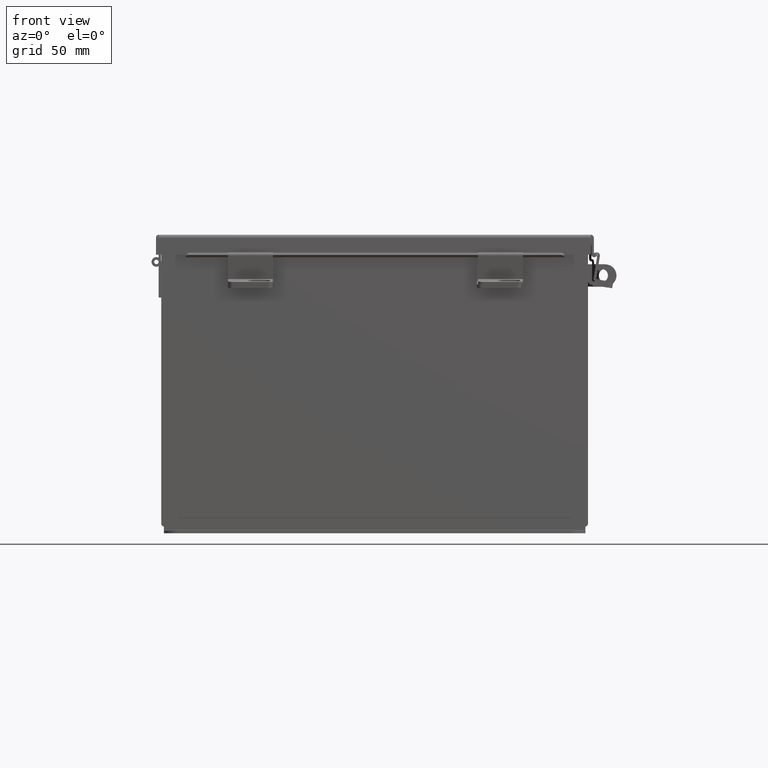
[diagram: clean part render]
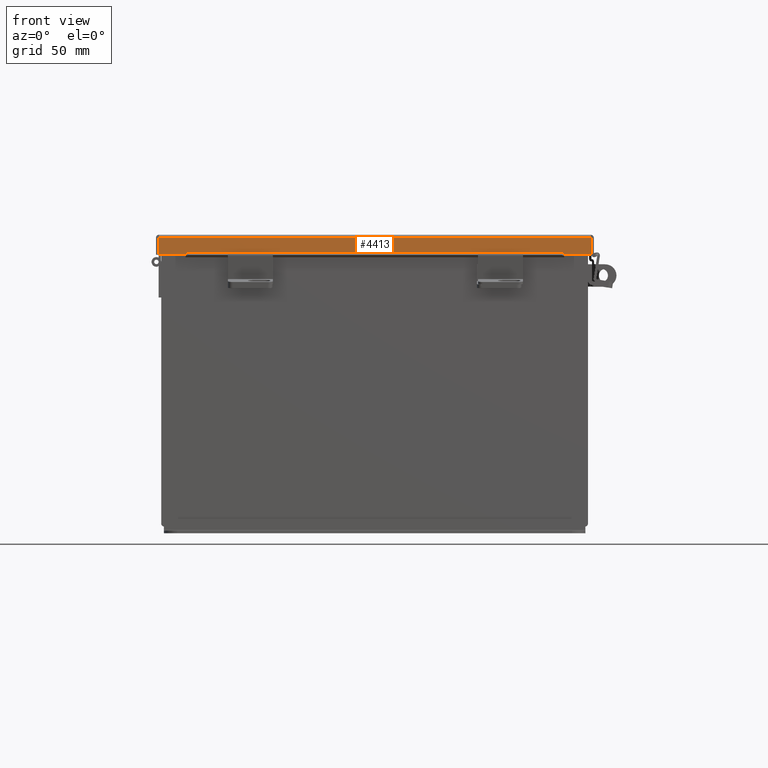
[diagram: same view with one face highlighted and labeled with its STEP entity id]
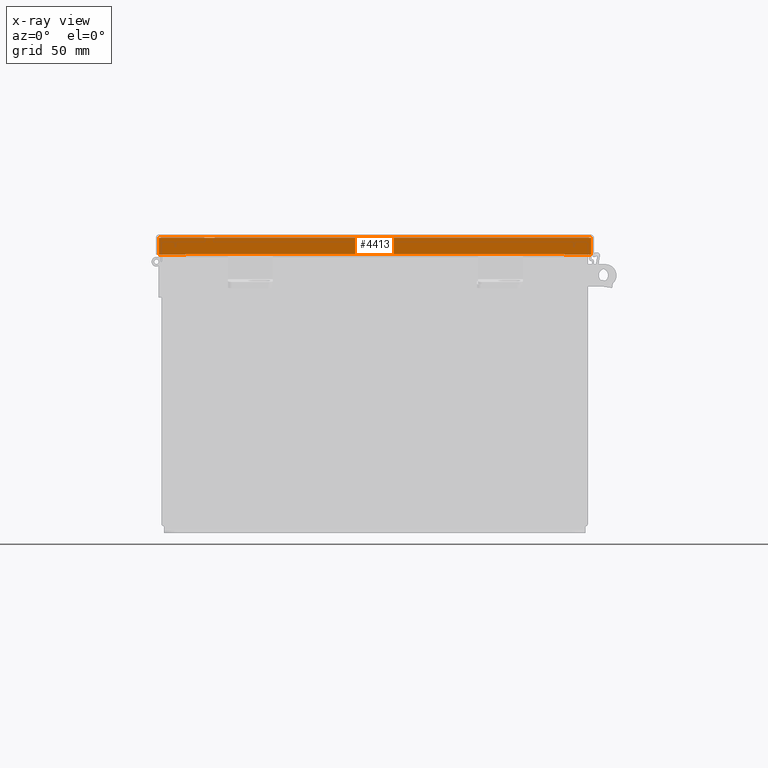
[diagram: x-ray of the same camera — body ghosted, the highlighted face saturated]
A machine part, front view. The second image highlights one B-rep face of the part: STEP entity #4413.
The next image is the same camera in x-ray: the body ghosted, the highlighted face saturated — about 0% of this face is hidden behind the body in this view.
In plain terms, the highlighted planar face has unit normal (0, 1, -0).
Its self-contained STEP definition (entity closure, byte-faithful):
#132 = CARTESIAN_POINT ( 'NONE',  ( -6.156249999999998200, -6.156250000000000000, 0.01299999999999978100 ) ) ;
#170 = LINE ( 'NONE', #132, #17610 ) ;
#367 = VERTEX_POINT ( 'NONE', #525 ) ;
#525 = CARTESIAN_POINT ( 'NONE',  ( 5.324478932188133000, -6.156250000000002700, 0.4717115427318791000 ) ) ;
#1169 = VERTEX_POINT ( 'NONE', #15259 ) ;
#2049 = EDGE_CURVE ( 'NONE', #367, #8483, #12065, .T. ) ;
#2500 = VECTOR ( 'NONE', #11872, 39.37007874015748100 ) ;
#2605 = VERTEX_POINT ( 'NONE', #9990 ) ;
#2609 = LINE ( 'NONE', #15858, #16367 ) ;
#2761 = PLANE ( 'NONE',  #13029 ) ;
#2762 = ORIENTED_EDGE ( 'NONE', *, *, #9770, .T. ) ;
#3127 = LINE ( 'NONE', #3197, #17752 ) ;
#3197 = CARTESIAN_POINT ( 'NONE',  ( -5.324478932188135600, -6.156250000000003600, 0.4717115427318791000 ) ) ;
#3257 = CARTESIAN_POINT ( 'NONE',  ( 2.703004116370754100E-018, -6.156250000000002700, 0.4872999999999997900 ) ) ;
#3321 = EDGE_LOOP ( 'NONE', ( #6032, #2762, #11891, #16739, #8761, #12601, #6228, #5368 ) ) ;
#3457 = EDGE_CURVE ( 'NONE', #4197, #13105, #4594, .T. ) ;
#3513 = CARTESIAN_POINT ( 'NONE',  ( -5.324478932188134700, -6.156250000000002700, 0.4717115427318791000 ) ) ;
#3927 = DIRECTION ( 'NONE',  ( 0.0000000000000000000, 7.009925220121084600E-014, -1.000000000000000000 ) ) ;
#4022 = VERTEX_POINT ( 'NONE', #6046 ) ;
#4153 = VECTOR ( 'NONE', #3927, 39.37007874015748100 ) ;
#4197 = VERTEX_POINT ( 'NONE', #15978 ) ;
#4371 = CARTESIAN_POINT ( 'NONE',  ( -5.324478932188134700, -6.156250000000004400, 0.4872999999999985700 ) ) ;
#4413 = ADVANCED_FACE ( 'NONE', ( #16336 ), #2761, .F. ) ;
#4594 = LINE ( 'NONE', #4371, #4153 ) ;
#4617 = DIRECTION ( 'NONE',  ( 1.000000000000000000, 0.0000000000000000000, 0.0000000000000000000 ) ) ;
#5368 = ORIENTED_EDGE ( 'NONE', *, *, #15896, .F. ) ;
#5553 = DIRECTION ( 'NONE',  ( 0.0000000000000000000, -4.484872552701437000E-015, 1.000000000000000000 ) ) ;
#6032 = ORIENTED_EDGE ( 'NONE', *, *, #3457, .F. ) ;
#6046 = CARTESIAN_POINT ( 'NONE',  ( 6.074478932188137400, -6.156250000000000000, 0.01299999999999978100 ) ) ;
#6228 = ORIENTED_EDGE ( 'NONE', *, *, #2049, .F. ) ;
#6231 = CARTESIAN_POINT ( 'NONE',  ( 5.324478932188133000, -6.156250000000003600, 0.4717115427318791000 ) ) ;
#6331 = VECTOR ( 'NONE', #13267, 39.37007874015748100 ) ;
#6408 = CARTESIAN_POINT ( 'NONE',  ( -6.074478932188137400, -6.156250000000000000, -3.350199796867980800E-016 ) ) ;
#6702 = VECTOR ( 'NONE', #12766, 39.37007874015748100 ) ;
#7116 = CARTESIAN_POINT ( 'NONE',  ( 5.324478932188132100, -6.156250000000002700, 0.4872999999999997900 ) ) ;
#8407 = DIRECTION ( 'NONE',  ( -1.000000000000000000, 2.487713722829918300E-032, 1.089533968265403200E-046 ) ) ;
#8442 = VECTOR ( 'NONE', #15795, 39.37007874015748100 ) ;
#8483 = VERTEX_POINT ( 'NONE', #7116 ) ;
#8761 = ORIENTED_EDGE ( 'NONE', *, *, #17486, .T. ) ;
#8770 = EDGE_CURVE ( 'NONE', #1169, #8483, #2609, .T. ) ;
#9770 = EDGE_CURVE ( 'NONE', #4197, #11869, #13962, .T. ) ;
#9990 = CARTESIAN_POINT ( 'NONE',  ( -6.074478932188137400, -6.156250000000000000, 0.01299999999999977400 ) ) ;
#10227 = EDGE_CURVE ( 'NONE', #4022, #2605, #170, .T. ) ;
#10359 = LINE ( 'NONE', #13333, #6331 ) ;
#11685 = DIRECTION ( 'NONE',  ( -1.000000000000000000, 0.0000000000000000000, 5.546899479521349200E-018 ) ) ;
#11869 = VERTEX_POINT ( 'NONE', #14700 ) ;
#11872 = DIRECTION ( 'NONE',  ( -0.0000000000000000000, -4.484872552701437000E-015, 1.000000000000000000 ) ) ;
#11891 = ORIENTED_EDGE ( 'NONE', *, *, #15181, .F. ) ;
#12065 = LINE ( 'NONE', #6231, #8442 ) ;
#12335 = CARTESIAN_POINT ( 'NONE',  ( -1.531498760617168500E-031, -6.156250000000000000, -2.787081030857980400E-014 ) ) ;
#12601 = ORIENTED_EDGE ( 'NONE', *, *, #8770, .T. ) ;
#12766 = DIRECTION ( 'NONE',  ( -1.000000000000000000, 0.0000000000000000000, 5.546899479521349200E-018 ) ) ;
#13023 = LINE ( 'NONE', #6408, #2500 ) ;
#13029 = AXIS2_PLACEMENT_3D ( 'NONE', #12335, #13742, #5553 ) ;
#13105 = VERTEX_POINT ( 'NONE', #3513 ) ;
#13267 = DIRECTION ( 'NONE',  ( 0.0000000000000000000, -4.484872552701437000E-015, 1.000000000000000000 ) ) ;
#13333 = CARTESIAN_POINT ( 'NONE',  ( 6.074478932188137400, -6.156250000000000000, -2.787081030857980400E-014 ) ) ;
#13742 = DIRECTION ( 'NONE',  ( 2.487713722829918300E-032, 1.000000000000000000, 4.484872552701437000E-015 ) ) ;
#13962 = LINE ( 'NONE', #3257, #6702 ) ;
#14700 = CARTESIAN_POINT ( 'NONE',  ( -6.074478932188137400, -6.156250000000002700, 0.4872999999999997900 ) ) ;
#15181 = EDGE_CURVE ( 'NONE', #2605, #11869, #13023, .T. ) ;
#15259 = CARTESIAN_POINT ( 'NONE',  ( 6.074478932188137400, -6.156250000000002700, 0.4872999999999997300 ) ) ;
#15795 = DIRECTION ( 'NONE',  ( 0.0000000000000000000, 0.0000000000000000000, 1.000000000000000000 ) ) ;
#15858 = CARTESIAN_POINT ( 'NONE',  ( 2.703004116370754100E-018, -6.156250000000002700, 0.4872999999999997900 ) ) ;
#15896 = EDGE_CURVE ( 'NONE', #13105, #367, #3127, .T. ) ;
#15978 = CARTESIAN_POINT ( 'NONE',  ( -5.324478932188134700, -6.156250000000002700, 0.4872999999999997900 ) ) ;
#16336 = FACE_OUTER_BOUND ( 'NONE', #3321, .T. ) ;
#16367 = VECTOR ( 'NONE', #11685, 39.37007874015748100 ) ;
#16739 = ORIENTED_EDGE ( 'NONE', *, *, #10227, .F. ) ;
#17486 = EDGE_CURVE ( 'NONE', #4022, #1169, #10359, .T. ) ;
#17610 = VECTOR ( 'NONE', #8407, 39.37007874015748100 ) ;
#17752 = VECTOR ( 'NONE', #4617, 39.37007874015748100 ) ;